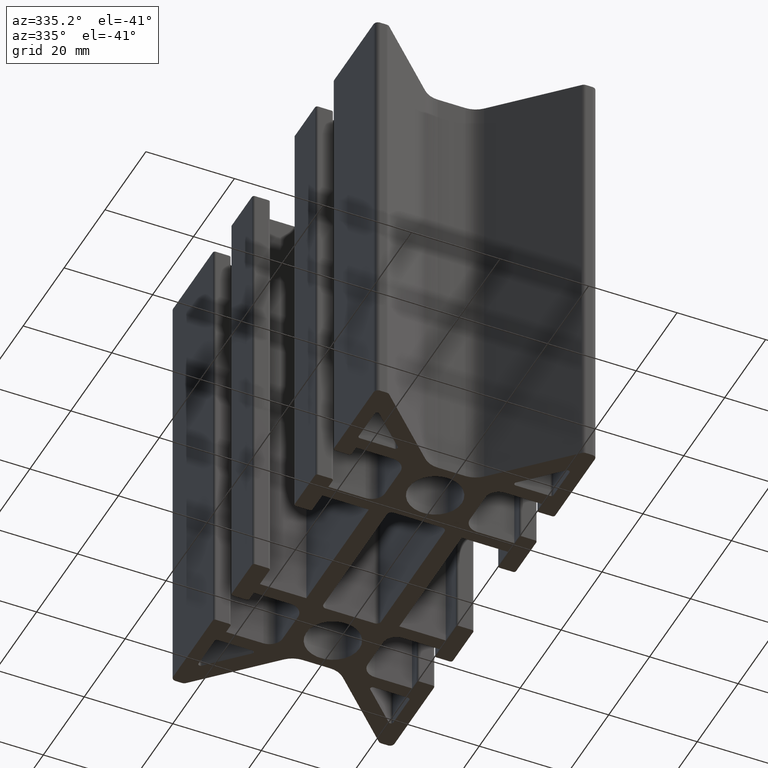
[diagram: clean part render]
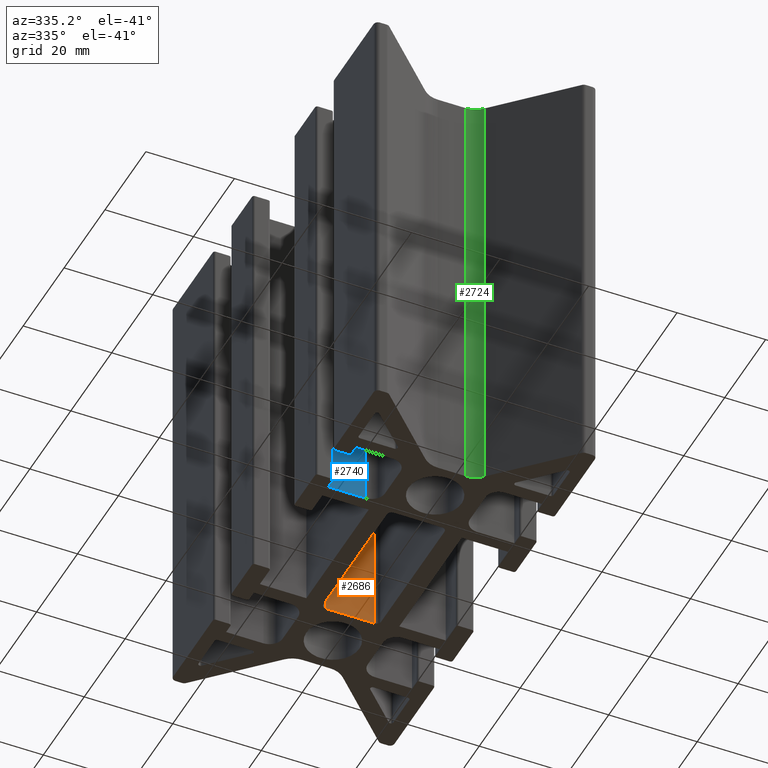
[diagram: same view with three faces highlighted in distinct colors, each labeled with its STEP entity id]
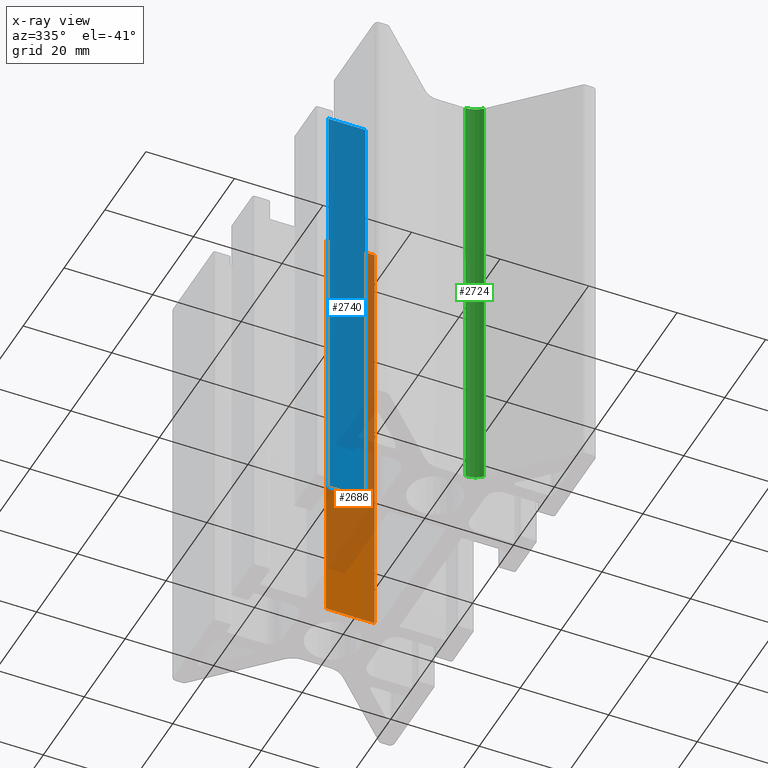
[diagram: x-ray of the same camera — body ghosted, the three highlighted faces saturated]
A machine part, auxiliary view with three faces highlighted in distinct colors.
The next image is the same camera in x-ray (body ghosted, the three faces saturated) — at least one of them is partly hidden behind the body in this view.
Their STEP definitions:

[orange] entity #2686 — the highlighted planar face has unit normal (-0, 1, 0).
#29=PLANE('',#2851);
#108=FACE_OUTER_BOUND('',#248,.T.);
#248=EDGE_LOOP('',(#1799,#1800,#1801,#1802));
#526=LINE('',#3940,#816);
#527=LINE('',#3944,#817);
#528=LINE('',#3946,#818);
#529=LINE('',#3947,#819);
#816=VECTOR('',#3119,10.);
#817=VECTOR('',#3124,10.);
#818=VECTOR('',#3125,10.);
#819=VECTOR('',#3126,10.);
#1107=VERTEX_POINT('',#3937);
#1108=VERTEX_POINT('',#3939);
#1109=VERTEX_POINT('',#3943);
#1110=VERTEX_POINT('',#3945);
#1383=EDGE_CURVE('',#1107,#1108,#526,.T.);
#1385=EDGE_CURVE('',#1109,#1107,#527,.T.);
#1386=EDGE_CURVE('',#1109,#1110,#528,.T.);
#1387=EDGE_CURVE('',#1108,#1110,#529,.T.);
#1799=ORIENTED_EDGE('',*,*,#1383,.F.);
#1800=ORIENTED_EDGE('',*,*,#1385,.F.);
#1801=ORIENTED_EDGE('',*,*,#1386,.T.);
#1802=ORIENTED_EDGE('',*,*,#1387,.F.);
#2686=ADVANCED_FACE('',(#108),#29,.F.);
#2851=AXIS2_PLACEMENT_3D('',#3942,#3122,#3123);
#3119=DIRECTION('',(0.,0.,1.));
#3122=DIRECTION('center_axis',(-6.05576195250233E-16,1.,0.));
#3123=DIRECTION('ref_axis',(-1.,-6.05576195250233E-16,0.));
#3124=DIRECTION('',(-1.,-6.05576195250233E-16,0.));
#3125=DIRECTION('',(0.,0.,1.));
#3126=DIRECTION('',(1.,6.05576195250233E-16,0.));
#3937=CARTESIAN_POINT('',(-5.50000000001227,16.4999999999966,-50.));
#3939=CARTESIAN_POINT('',(-5.50000000001227,16.4999999999966,50.));
#3940=CARTESIAN_POINT('',(-5.50000000001227,16.4999999999966,0.));
#3942=CARTESIAN_POINT('Origin',(5.49999999998505,16.4999999999966,0.));
#3943=CARTESIAN_POINT('',(5.49999999998504,16.4999999999966,-50.));
#3944=CARTESIAN_POINT('',(2.74999999999363,16.4999999999966,-50.));
#3945=CARTESIAN_POINT('',(5.49999999998504,16.4999999999966,50.));
#3946=CARTESIAN_POINT('',(5.49999999998505,16.4999999999966,0.));
#3947=CARTESIAN_POINT('',(2.74999999999363,16.4999999999966,50.));

[blue] entity #2740 — the highlighted planar face has unit normal (0, -1, 0).
#56=PLANE('',#2993);
#162=FACE_OUTER_BOUND('',#309,.T.);
#309=EDGE_LOOP('',(#2149,#2150,#2151,#2152));
#602=LINE('',#4182,#892);
#681=LINE('',#4427,#971);
#682=LINE('',#4430,#972);
#683=LINE('',#4431,#973);
#892=VECTOR('',#3353,10.);
#971=VECTOR('',#3560,10.);
#972=VECTOR('',#3563,10.);
#973=VECTOR('',#3564,10.);
#1194=VERTEX_POINT('',#4179);
#1195=VERTEX_POINT('',#4181);
#1297=VERTEX_POINT('',#4425);
#1298=VERTEX_POINT('',#4429);
#1504=EDGE_CURVE('',#1194,#1195,#602,.T.);
#1627=EDGE_CURVE('',#1194,#1297,#681,.T.);
#1628=EDGE_CURVE('',#1298,#1297,#682,.T.);
#1629=EDGE_CURVE('',#1195,#1298,#683,.T.);
#2149=ORIENTED_EDGE('',*,*,#1627,.T.);
#2150=ORIENTED_EDGE('',*,*,#1628,.F.);
#2151=ORIENTED_EDGE('',*,*,#1629,.F.);
#2152=ORIENTED_EDGE('',*,*,#1504,.F.);
#2740=ADVANCED_FACE('',(#162),#56,.T.);
#2993=AXIS2_PLACEMENT_3D('',#4428,#3561,#3562);
#3353=DIRECTION('',(-1.,0.,0.));
#3560=DIRECTION('',(0.,0.,1.));
#3561=DIRECTION('center_axis',(0.,-1.,0.));
#3562=DIRECTION('ref_axis',(1.,0.,0.));
#3563=DIRECTION('',(1.,0.,0.));
#3564=DIRECTION('',(0.,0.,1.));
#4179=CARTESIAN_POINT('',(-12.5999999999899,-18.2500000000008,-50.));
#4181=CARTESIAN_POINT('',(-21.0000000000007,-18.2500000000008,-50.));
#4182=CARTESIAN_POINT('',(-21.0000000000007,-18.2500000000008,-50.));
#4425=CARTESIAN_POINT('',(-12.5999999999899,-18.2500000000008,50.));
#4427=CARTESIAN_POINT('',(-12.5999999999899,-18.2500000000008,0.));
#4428=CARTESIAN_POINT('Origin',(-21.0000000000007,-18.2500000000008,0.));
#4429=CARTESIAN_POINT('',(-21.0000000000007,-18.2500000000008,50.));
#4430=CARTESIAN_POINT('',(-21.0000000000007,-18.2500000000008,50.));
#4431=CARTESIAN_POINT('',(-21.0000000000007,-18.2500000000008,0.));

[green] entity #2724 — the highlighted cylindrical surface (edge-blend (fillet) strip) has radius 5 mm, axis along (0, 0, 1).
#146=FACE_OUTER_BOUND('',#293,.T.);
#293=EDGE_LOOP('',(#2085,#2086,#2087,#2088));
#439=CIRCLE('',#2921,5.00000000000011);
#483=CIRCLE('',#2970,5.00000000000011);
#657=LINE('',#4363,#947);
#658=LINE('',#4367,#948);
#947=VECTOR('',#3488,10.);
#948=VECTOR('',#3493,10.);
#1178=VERTEX_POINT('',#4147);
#1179=VERTEX_POINT('',#4149);
#1281=VERTEX_POINT('',#4361);
#1282=VERTEX_POINT('',#4365);
#1488=EDGE_CURVE('',#1178,#1179,#439,.T.);
#1595=EDGE_CURVE('',#1178,#1281,#657,.T.);
#1596=EDGE_CURVE('',#1282,#1281,#483,.T.);
#1597=EDGE_CURVE('',#1179,#1282,#658,.T.);
#2085=ORIENTED_EDGE('',*,*,#1595,.T.);
#2086=ORIENTED_EDGE('',*,*,#1596,.F.);
#2087=ORIENTED_EDGE('',*,*,#1597,.F.);
#2088=ORIENTED_EDGE('',*,*,#1488,.F.);
#2643=CYLINDRICAL_SURFACE('',#2969,5.00000000000011);
#2724=ADVANCED_FACE('',(#146),#2643,.F.);
#2921=AXIS2_PLACEMENT_3D('',#4150,#3329,#3330);
#2969=AXIS2_PLACEMENT_3D('',#4364,#3489,#3490);
#2970=AXIS2_PLACEMENT_3D('',#4366,#3491,#3492);
#3329=DIRECTION('center_axis',(0.,0.,1.));
#3330=DIRECTION('ref_axis',(-0.707106781186628,-0.707106781186467,0.));
#3488=DIRECTION('',(0.,0.,1.));
#3489=DIRECTION('center_axis',(0.,0.,1.));
#3490=DIRECTION('ref_axis',(-0.707106781186628,-0.707106781186467,0.));
#3491=DIRECTION('center_axis',(0.,0.,-1.));
#3492=DIRECTION('ref_axis',(-0.707106781186628,-0.707106781186467,0.));
#3493=DIRECTION('',(0.,0.,1.));
#4147=CARTESIAN_POINT('',(6.65300660147049,-34.5644660940802,-50.));
#4149=CARTESIAN_POINT('',(3.11747269553735,-33.1000000000125,-50.));
#4150=CARTESIAN_POINT('Origin',(3.11747269553735,-38.1000000000125,-50.));
#4361=CARTESIAN_POINT('',(6.65300660147049,-34.5644660940802,50.));
#4363=CARTESIAN_POINT('',(6.65300660147049,-34.5644660940802,0.));
#4364=CARTESIAN_POINT('Origin',(3.11747269553735,-38.1000000000125,0.));
#4365=CARTESIAN_POINT('',(3.11747269553735,-33.1000000000125,50.));
#4366=CARTESIAN_POINT('Origin',(3.11747269553735,-38.1000000000125,50.));
#4367=CARTESIAN_POINT('',(3.11747269553735,-33.1000000000125,0.));